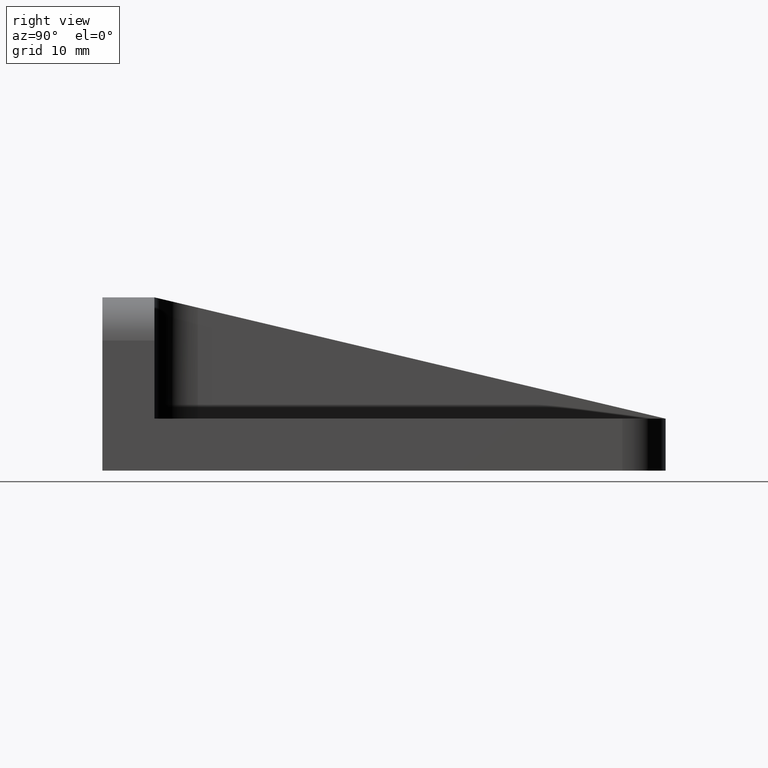
[diagram: clean part render]
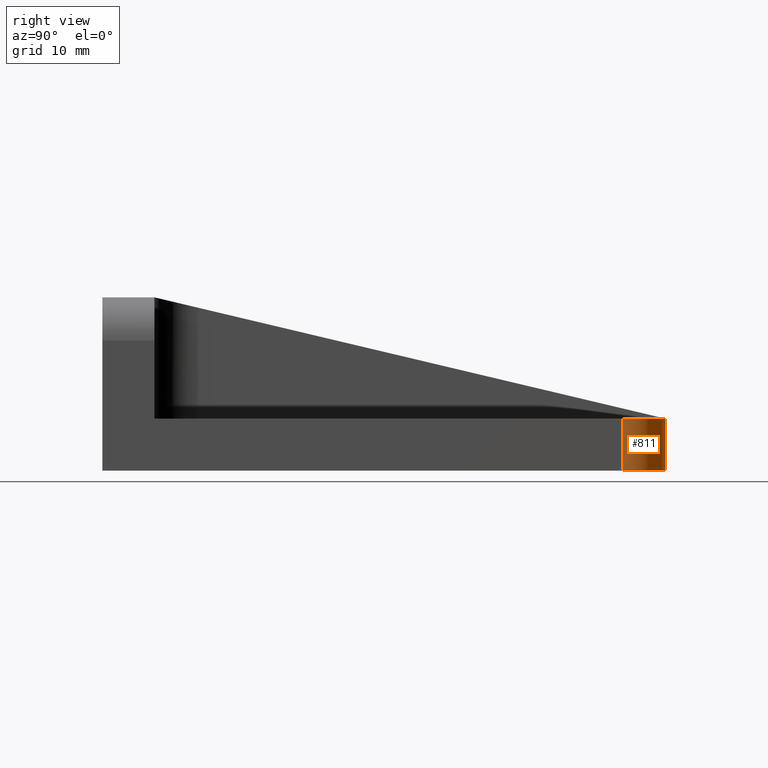
[diagram: same view with one face highlighted and labeled with its STEP entity id]
A machine part, right view. The second image highlights one B-rep face of the part: STEP entity #811.
In plain terms, the highlighted cylindrical surface (partial cylindrical patch) has radius 5 mm, axis along (0, 0, 1).
Its self-contained STEP definition (entity closure, byte-faithful):
#100 = VERTEX_POINT ( 'NONE', #932 ) ;
#107 = DIRECTION ( 'NONE',  ( 0.0000000000000000000, 0.0000000000000000000, 1.000000000000000000 ) ) ;
#126 = AXIS2_PLACEMENT_3D ( 'NONE', #155, #942, #749 ) ;
#134 = LINE ( 'NONE', #636, #760 ) ;
#155 = CARTESIAN_POINT ( 'NONE',  ( 20.00000000000000000, 60.00000000000000711, 6.000000000000000000 ) ) ;
#243 = CIRCLE ( 'NONE', #126, 5.000000000000000888 ) ;
#288 = CARTESIAN_POINT ( 'NONE',  ( 20.00000000000000000, 60.00000000000000711, 0.0000000000000000000 ) ) ;
#300 = CARTESIAN_POINT ( 'NONE',  ( 20.00000000000000000, 65.00000000000000000, 6.000000000000000000 ) ) ;
#313 = CARTESIAN_POINT ( 'NONE',  ( 20.00000000000000000, 60.00000000000000711, 0.0000000000000000000 ) ) ;
#339 = VERTEX_POINT ( 'NONE', #300 ) ;
#367 = CARTESIAN_POINT ( 'NONE',  ( 25.00000000000000000, 60.00000000000000711, 0.0000000000000000000 ) ) ;
#392 = CYLINDRICAL_SURFACE ( 'NONE', #1049, 5.000000000000000888 ) ;
#406 = LINE ( 'NONE', #793, #1047 ) ;
#443 = VERTEX_POINT ( 'NONE', #994 ) ;
#447 = DIRECTION ( 'NONE',  ( -0.0000000000000000000, -0.0000000000000000000, -1.000000000000000000 ) ) ;
#524 = EDGE_CURVE ( 'NONE', #1228, #443, #406, .T. ) ;
#532 = CIRCLE ( 'NONE', #741, 5.000000000000000888 ) ;
#586 = EDGE_LOOP ( 'NONE', ( #832, #1065, #1126, #662 ) ) ;
#636 = CARTESIAN_POINT ( 'NONE',  ( 20.00000000000000000, 65.00000000000000000, 0.0000000000000000000 ) ) ;
#646 = EDGE_CURVE ( 'NONE', #100, #1228, #532, .T. ) ;
#647 = DIRECTION ( 'NONE',  ( 1.000000000000000000, 0.0000000000000000000, 0.0000000000000000000 ) ) ;
#662 = ORIENTED_EDGE ( 'NONE', *, *, #524, .F. ) ;
#684 = FACE_OUTER_BOUND ( 'NONE', #586, .T. ) ;
#741 = AXIS2_PLACEMENT_3D ( 'NONE', #313, #447, #647 ) ;
#749 = DIRECTION ( 'NONE',  ( 1.000000000000000000, 0.0000000000000000000, 0.0000000000000000000 ) ) ;
#760 = VECTOR ( 'NONE', #1189, 1000.000000000000000 ) ;
#793 = CARTESIAN_POINT ( 'NONE',  ( 25.00000000000000000, 60.00000000000000711, 0.0000000000000000000 ) ) ;
#811 = ADVANCED_FACE ( 'NONE', ( #684 ), #392, .T. ) ;
#832 = ORIENTED_EDGE ( 'NONE', *, *, #646, .F. ) ;
#881 = EDGE_CURVE ( 'NONE', #339, #100, #134, .T. ) ;
#932 = CARTESIAN_POINT ( 'NONE',  ( 20.00000000000000000, 65.00000000000000000, 0.0000000000000000000 ) ) ;
#942 = DIRECTION ( 'NONE',  ( 0.0000000000000000000, 0.0000000000000000000, 1.000000000000000000 ) ) ;
#987 = DIRECTION ( 'NONE',  ( 1.000000000000000000, 0.0000000000000000000, 0.0000000000000000000 ) ) ;
#994 = CARTESIAN_POINT ( 'NONE',  ( 25.00000000000000000, 60.00000000000000711, 6.000000000000005329 ) ) ;
#1047 = VECTOR ( 'NONE', #1174, 1000.000000000000000 ) ;
#1049 = AXIS2_PLACEMENT_3D ( 'NONE', #288, #107, #987 ) ;
#1065 = ORIENTED_EDGE ( 'NONE', *, *, #881, .F. ) ;
#1126 = ORIENTED_EDGE ( 'NONE', *, *, #1235, .F. ) ;
#1174 = DIRECTION ( 'NONE',  ( 0.0000000000000000000, 0.0000000000000000000, 1.000000000000000000 ) ) ;
#1189 = DIRECTION ( 'NONE',  ( -0.0000000000000000000, -0.0000000000000000000, -1.000000000000000000 ) ) ;
#1228 = VERTEX_POINT ( 'NONE', #367 ) ;
#1235 = EDGE_CURVE ( 'NONE', #443, #339, #243, .T. ) ;